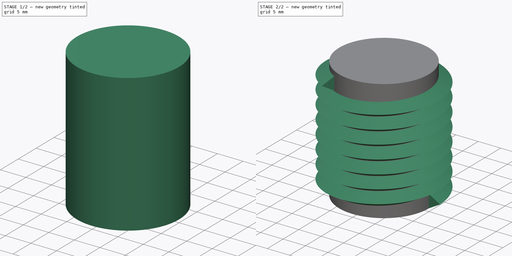
[diagram: build sequence overview — one tinted view per stage of 2, left to right]
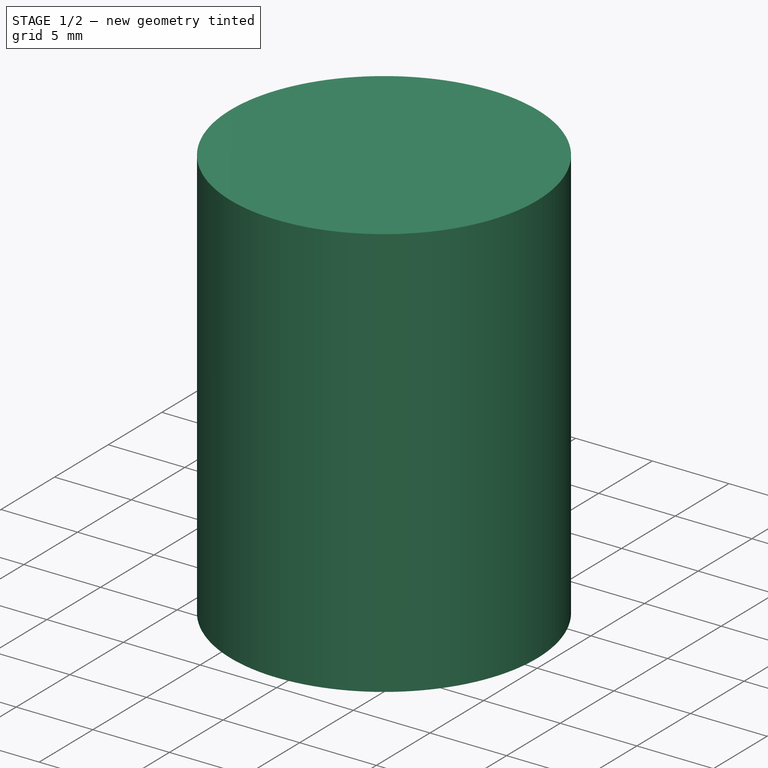
[diagram: stage 1 of 2 — iso view after this stage's code; geometry added in this stage tinted green]
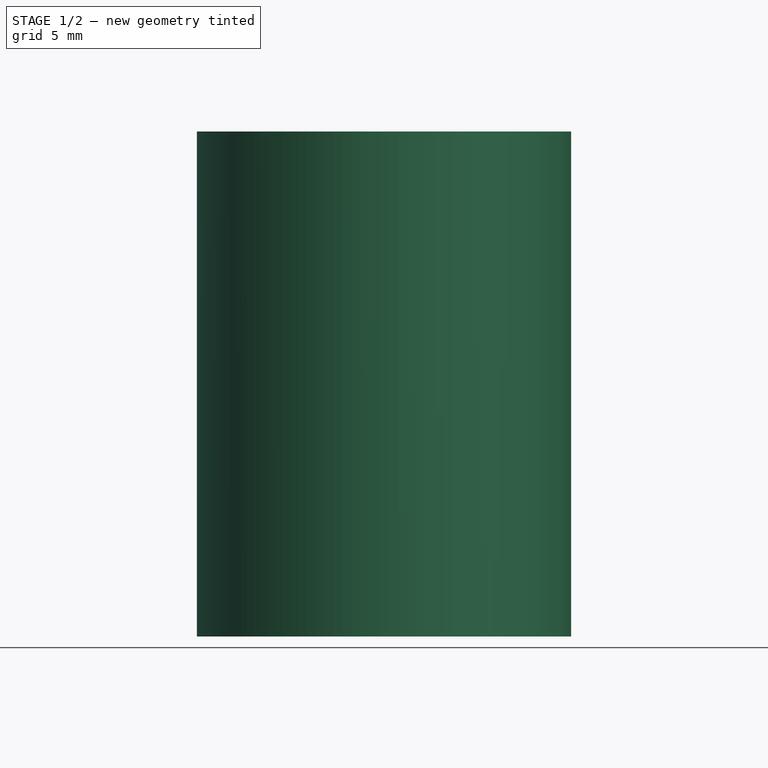
[diagram: stage 1 of 2 — front view after this stage's code; geometry added in this stage tinted green]
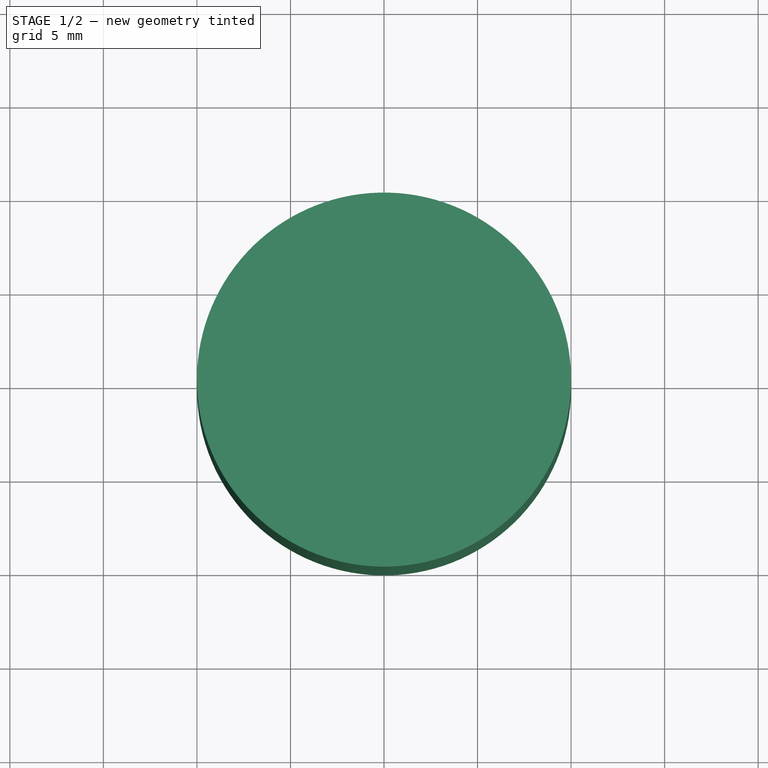
[diagram: stage 1 of 2 — top view after this stage's code; geometry added in this stage tinted green]
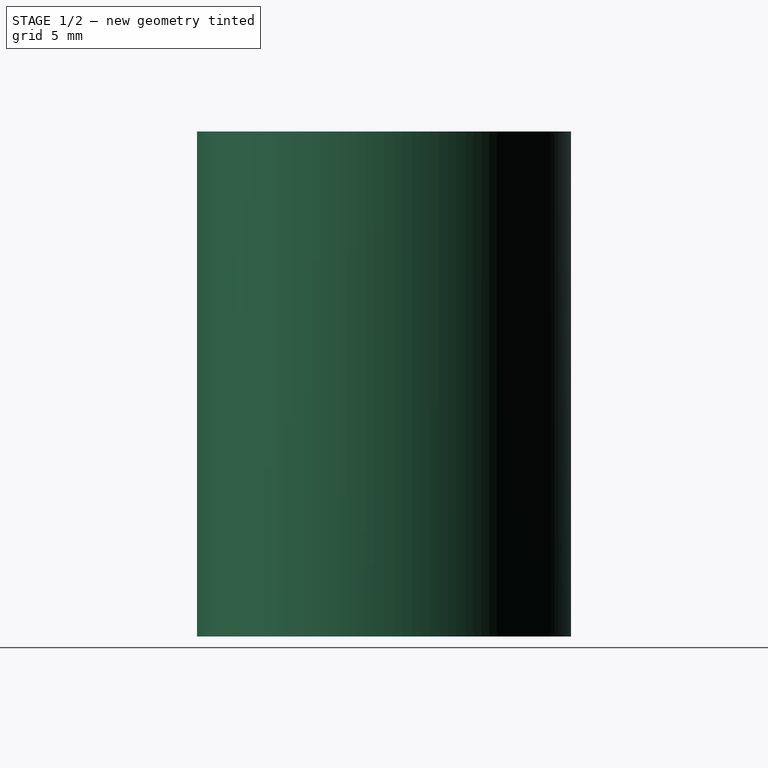
[diagram: stage 1 of 2 — right view after this stage's code; geometry added in this stage tinted green]
FCSTD DOCUMENT  (FreeCAD 0.21R33668 +26 (Git))
Label: Simple_Helical_thread
License: All rights reserved
LicenseURL: http://en.wikipedia.org/wiki/All_rights_reserved
objects: Part::Helix×1, PartDesign::FeatureBase×1, Sketcher::SketchObject×1, PartDesign::AdditivePipe×1, PartDesign::Body×1, Part::Cylinder×1, App::Part×1
note: 7 computed .brp shape members not serialized (recipe doc carries the construction recipe); baked Part::Feature solids carry a one-line shape summary decoded from their .brp

FEATURE [PartDesign::Body] Body
  BaseFeature = -> Helix
  Group = -> [BaseFeature,Sketch,AdditivePipe]
  Origin = -> Origin001
  Tip = -> AdditivePipe
FEATURE [Part::Cylinder] Cylinder
  Angle = 360
  AttacherType = Attacher::AttachEngine3D
  FirstAngle = 0
  Height = 27
  Radius = 10
  SecondAngle = 0
FEATURE [App::Part] Part
  Group = -> [Helix,Body,Cylinder]
  Origin = -> Origin
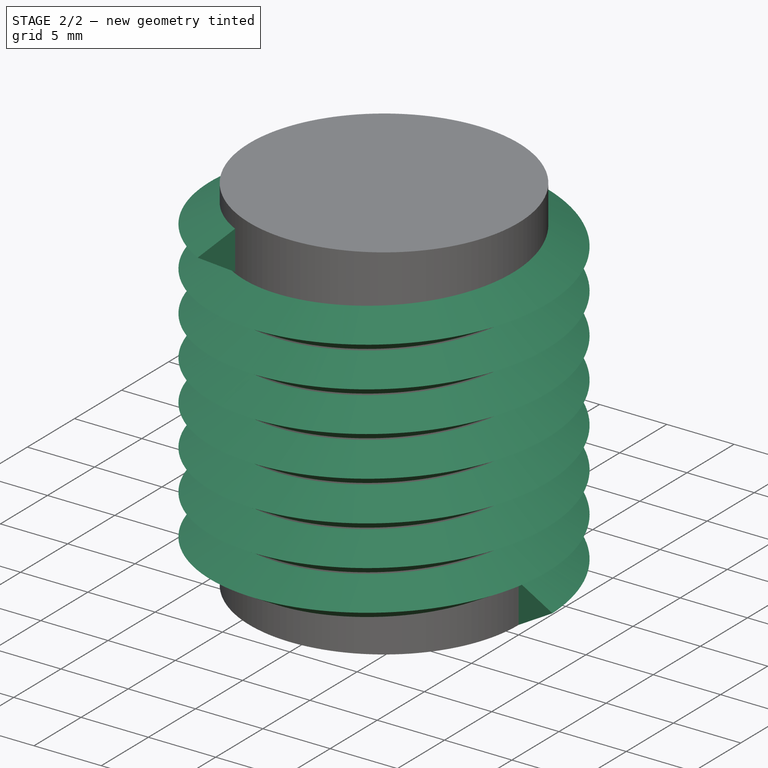
[diagram: stage 2 of 2 — iso view after this stage's code; geometry added in this stage tinted green]
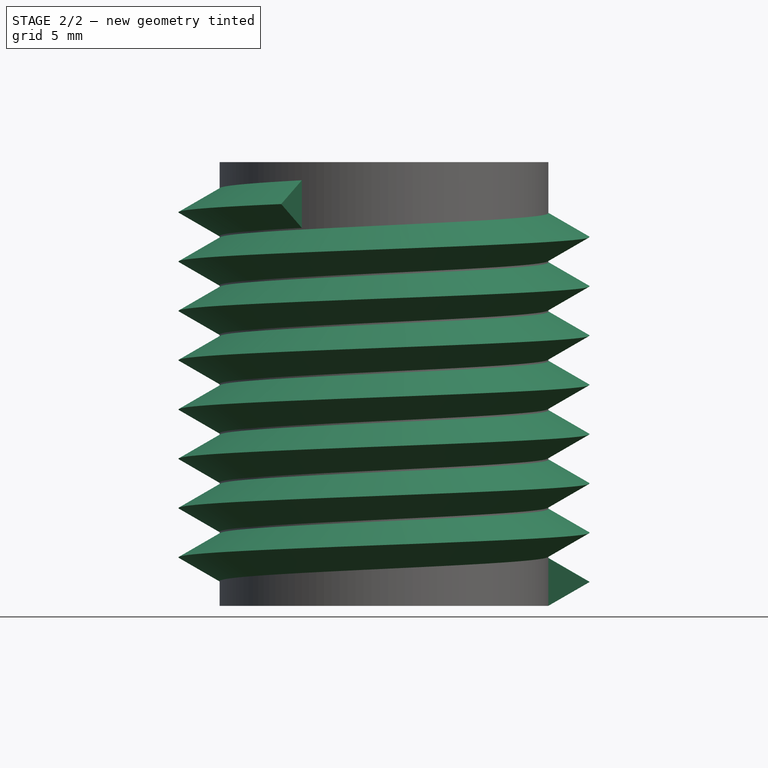
[diagram: stage 2 of 2 — front view after this stage's code; geometry added in this stage tinted green]
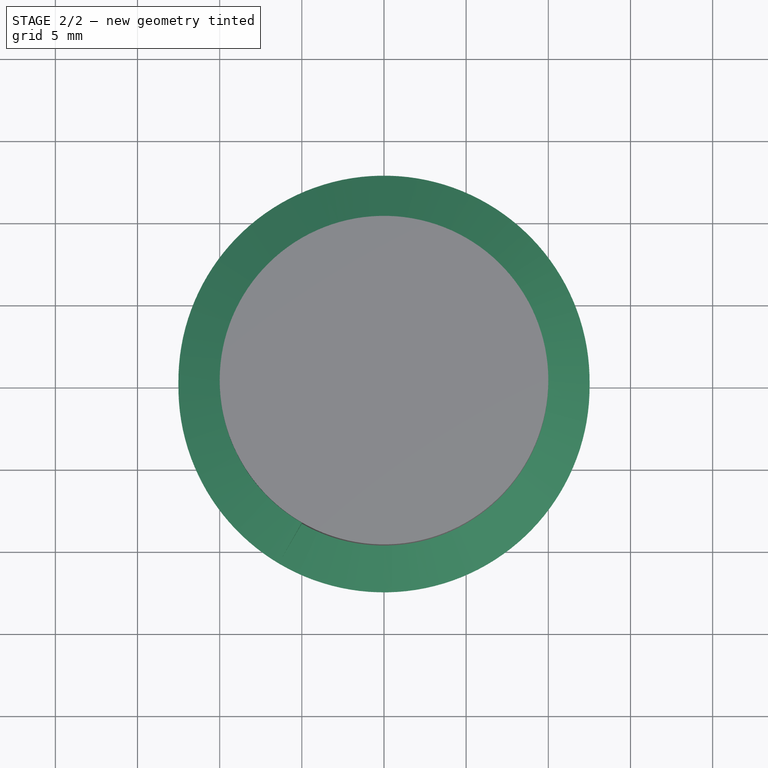
[diagram: stage 2 of 2 — top view after this stage's code; geometry added in this stage tinted green]
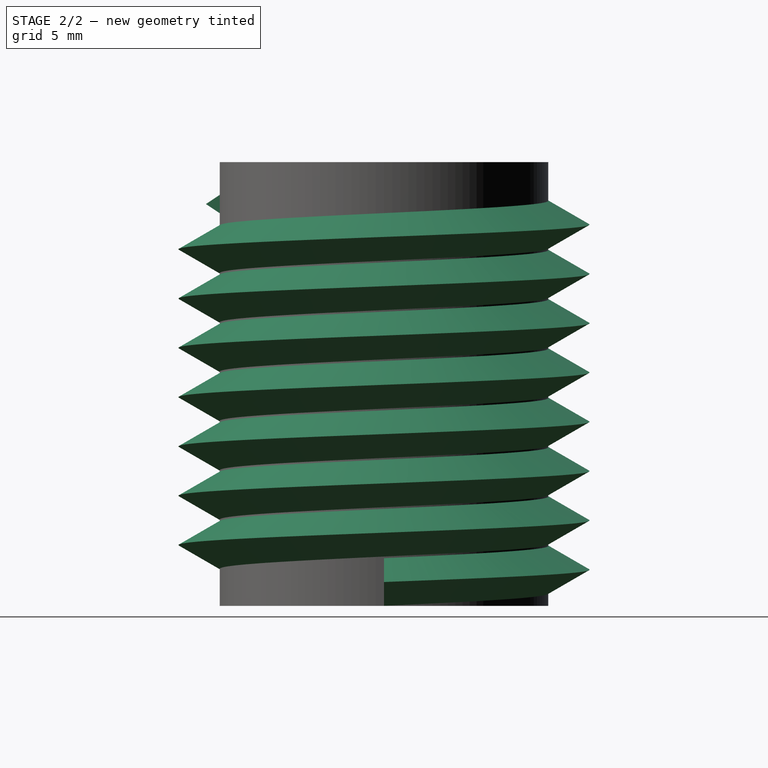
[diagram: stage 2 of 2 — right view after this stage's code; geometry added in this stage tinted green]
FEATURE [Part::Helix] Helix
  Angle = 0
  AttacherType = Attacher::AttachEngine3D
  Height = 23
  LocalCoord = 0
  Pitch = 3
  Radius = 10
  SegmentLength = 0
  Style = 1
FEATURE [PartDesign::FeatureBase] BaseFeature
  BaseFeature = -> Helix
FEATURE [Sketcher::SketchObject] Sketch
  FullyConstrained = true
  MapMode = 5
  Placement = pos=(0,0,0) rot=(1,0,0;1.5708rad)
  Support = -> [XZ_Plane001]
  sketch-geometry (5):
    g0: LineSegment StartX=9.5 StartY=2.9 StartZ=0 EndX=10 EndY=2.9 EndZ=0
    g1: LineSegment StartX=10 StartY=0 StartZ=0 EndX=9.5 EndY=0 EndZ=0
    g2: LineSegment StartX=9.5 StartY=0 StartZ=0 EndX=9.5 EndY=2.9 EndZ=0
    g3: LineSegment StartX=10 StartY=2.9 StartZ=0 EndX=12.5115 EndY=1.45 EndZ=0
    g4: LineSegment StartX=10 StartY=0 StartZ=0 EndX=12.5115 EndY=1.45 EndZ=0
  constraints (15):
    c: Coincident(g1,g2)
    c: Coincident(g2,g0)
    c: Horizontal(g0)
    c: Horizontal(g1)
    c: Vertical(g2)
    c: Horizontal(g1,g-1)
    c: DistanceX(g-1,g1) = 9.5
    c: DistanceX(g1,g1) = 0.5
    c: DistanceY(g2,g2) = 2.9
    c: Equal(g1,g0)
    c: Coincident(g3,g0)
    c: Coincident(g4,g1)
    c: Coincident(g4,g3)
    c: Angle(g0,g3) = 2.61799
    c: Angle(g4,g1) = 2.61799
FEATURE [PartDesign::AdditivePipe] AdditivePipe
  AuxilleryCurvelinear = true
  AuxillerySpineTangent = false
  BaseFeature = -> BaseFeature
  Binormal = (0,0,0)
  Mode = 2
  Profile = -> Sketch
  Refine = true
  Spine = -> BaseFeature
  SpineTangent = false
  Transformation = 0
  Transition = 0
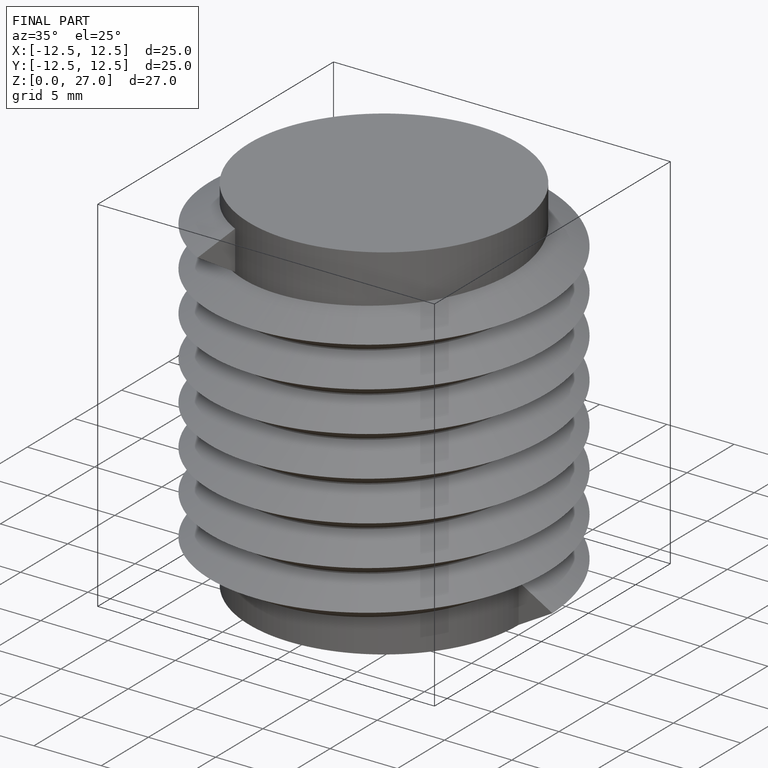
[diagram: finished part — iso view with bounding-box wireframe]
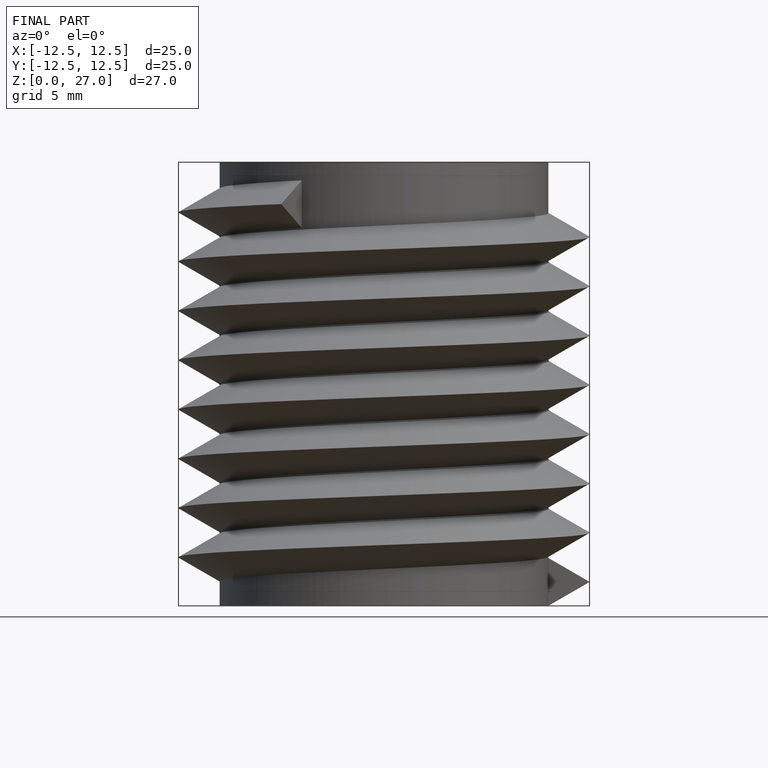
[diagram: finished part — front view with bounding-box wireframe]
